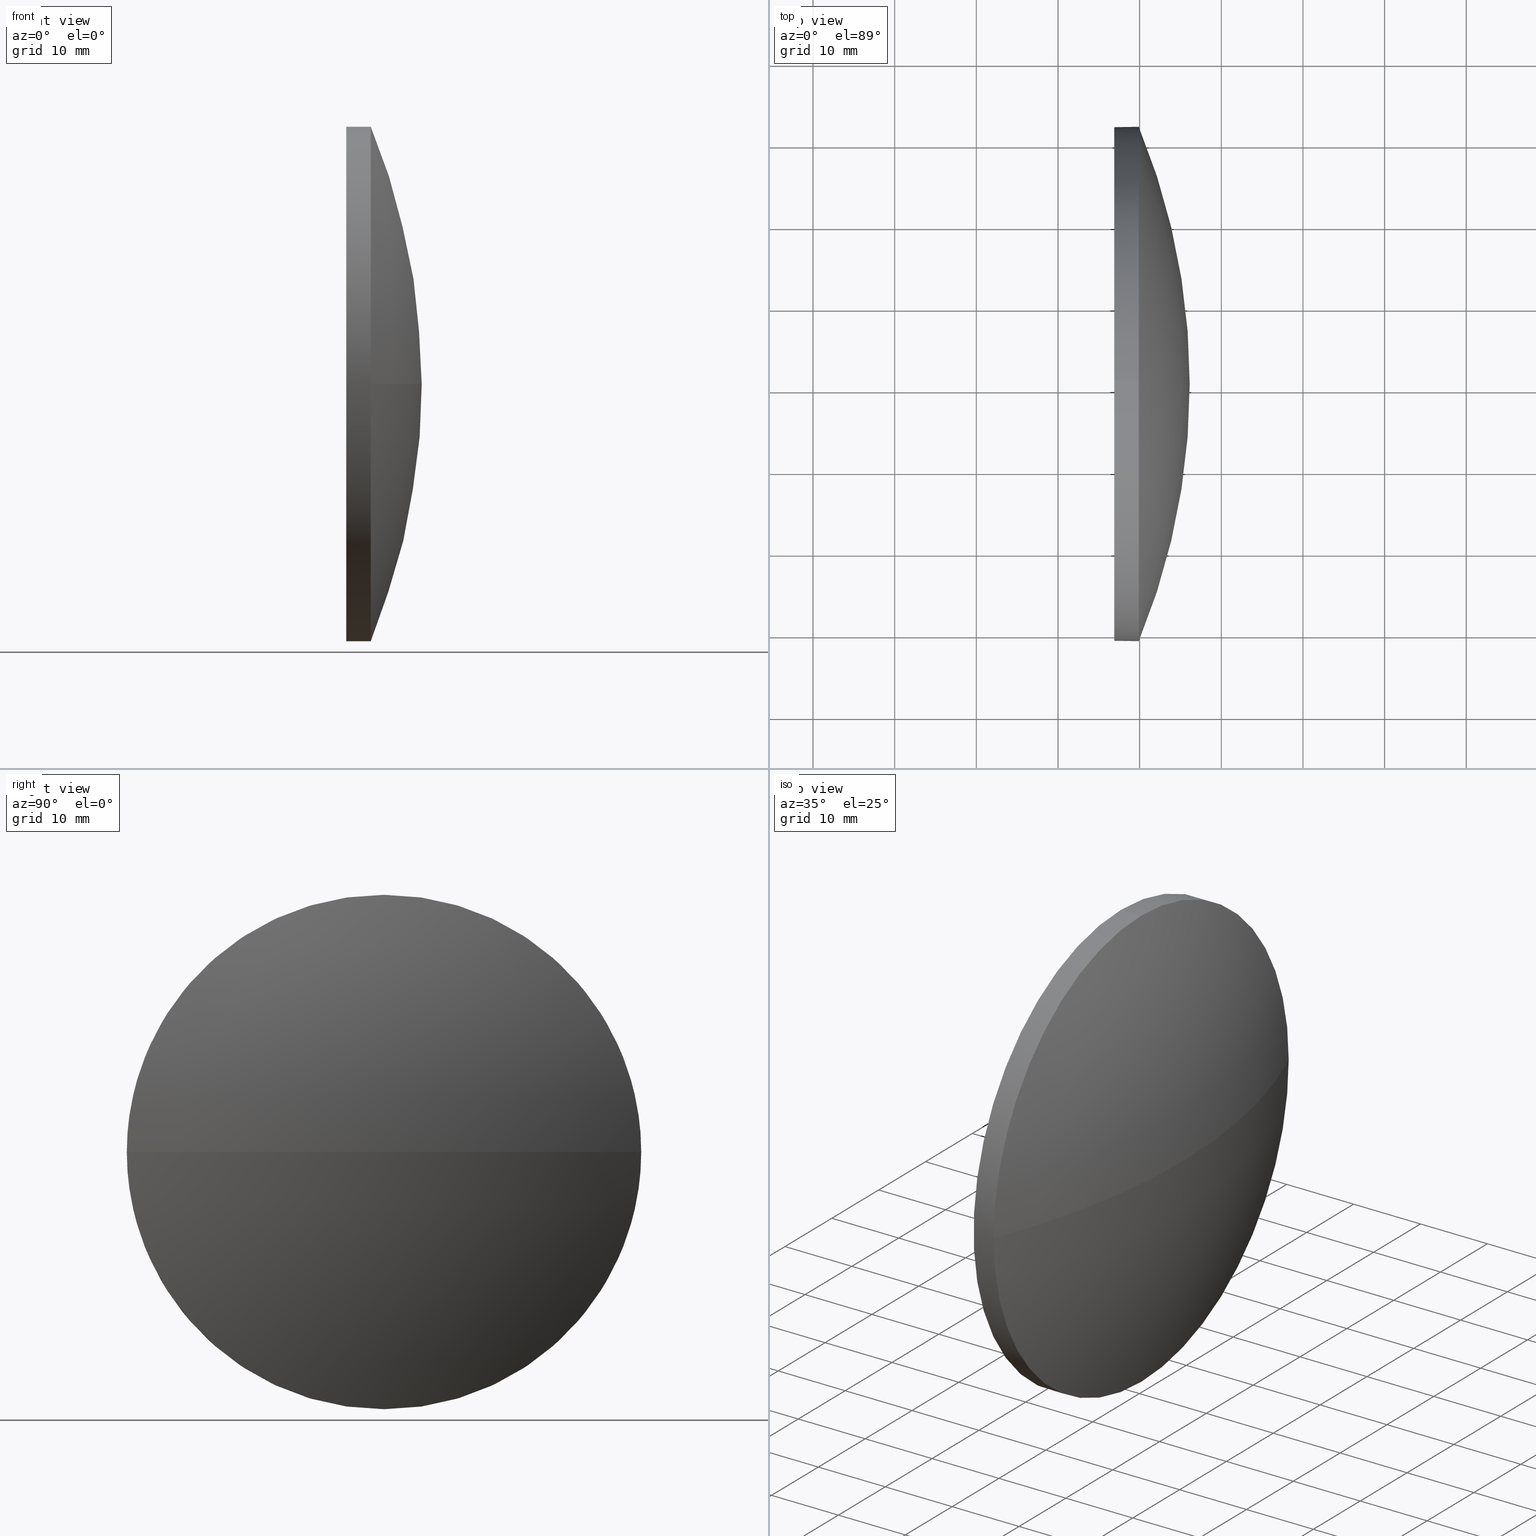
[diagram: canonical four-view strip — front | top / right | iso, engineering-drawing reading convention]
A machine part, canonical four-view strip (front | top / right | iso — engineering-drawing reading convention). The complete STEP part file that produces these views, byte-faithful:
ISO-10303-21;
HEADER;
FILE_DESCRIPTION (( 'STEP AP214' ),
    '1' );
FILE_NAME ('100246.STEP',
    '2019-05-28T08:59:00',
    ( '' ),
    ( '' ),
    'SwSTEP 2.0',
    'SolidWorks 2016',
    '' );
FILE_SCHEMA (( 'AUTOMOTIVE_DESIGN' ));
ENDSEC;

DATA;
#1 = PRODUCT ( '100246', '100246', '', ( #139 ) ) ;
#2 = DIRECTION ( 'NONE',  ( 0.0000000000000000000, 1.224646799147353200E-016, -1.000000000000000000 ) ) ;
#3 = MECHANICAL_DESIGN_GEOMETRIC_PRESENTATION_REPRESENTATION (  '', ( #155 ), #135 ) ;
#4 = ORIENTED_EDGE ( 'NONE', *, *, #32, .T. ) ;
#5 = CARTESIAN_POINT ( 'NONE',  ( 229.8933010013870400, 99.01858145695609900, -3.857637417314164300E-015 ) ) ;
#6 = EDGE_CURVE ( 'NONE', #92, #130, #160, .T. ) ;
#7 =( NAMED_UNIT ( * ) SI_UNIT ( $, .STERADIAN. ) SOLID_ANGLE_UNIT ( ) );
#8 = FACE_OUTER_BOUND ( 'NONE', #119, .T. ) ;
#9 = MECHANICAL_DESIGN_GEOMETRIC_PRESENTATION_REPRESENTATION (  '', ( #62 ), #13 ) ;
#10 =( GEOMETRIC_REPRESENTATION_CONTEXT ( 3 ) GLOBAL_UNCERTAINTY_ASSIGNED_CONTEXT ( ( #87 ) ) GLOBAL_UNIT_ASSIGNED_CONTEXT ( ( #166, #118, #37 ) ) REPRESENTATION_CONTEXT ( 'NONE', 'WORKASPACE' ) );
#11 = CARTESIAN_POINT ( 'NONE',  ( 229.8933010013870400, 130.5185814569561000, 0.0000000000000000000 ) ) ;
#12 = EDGE_CURVE ( 'NONE', #130, #92, #111, .T. ) ;
#13 =( GEOMETRIC_REPRESENTATION_CONTEXT ( 3 ) GLOBAL_UNCERTAINTY_ASSIGNED_CONTEXT ( ( #78 ) ) GLOBAL_UNIT_ASSIGNED_CONTEXT ( ( #181, #61, #7 ) ) REPRESENTATION_CONTEXT ( 'NONE', 'WORKASPACE' ) );
#14 = CARTESIAN_POINT ( 'NONE',  ( 226.8933010013870400, 130.5185814569561000, 0.0000000000000000000 ) ) ;
#15 = AXIS2_PLACEMENT_3D ( 'NONE', #123, #140, #143 ) ;
#16 = CARTESIAN_POINT ( 'NONE',  ( 153.5060894629256700, 130.5185814569561000, 0.0000000000000000000 ) ) ;
#17 = EDGE_LOOP ( 'NONE', ( #73, #177, #91, #186, #29 ) ) ;
#18 = LINE ( 'NONE', #47, #145 ) ;
#19 = CARTESIAN_POINT ( 'NONE',  ( 226.8933010013870400, 130.5185814569561000, -31.50000000000000000 ) ) ;
#20 = EDGE_CURVE ( 'NONE', #101, #92, #18, .T. ) ;
#21 = DIRECTION ( 'NONE',  ( 1.000000000000000000, 0.0000000000000000000, 0.0000000000000000000 ) ) ;
#22 = CARTESIAN_POINT ( 'NONE',  ( 229.8933010013870400, 130.5185814569561000, 0.0000000000000000000 ) ) ;
#23 = ADVANCED_FACE ( 'NONE', ( #173 ), #171, .T. ) ;
#24 = CARTESIAN_POINT ( 'NONE',  ( 153.5060894629256700, 130.5185814569561000, 0.0000000000000000000 ) ) ;
#25 = VERTEX_POINT ( 'NONE', #65 ) ;
#26 = EDGE_CURVE ( 'NONE', #161, #106, #60, .T. ) ;
#27 = ADVANCED_FACE ( 'NONE', ( #86 ), #44, .F. ) ;
#28 = COLOUR_RGB ( '',1.000000000000000000, 1.000000000000000000, 1.000000000000000000 ) ;
#29 = ORIENTED_EDGE ( 'NONE', *, *, #6, .F. ) ;
#30 = EDGE_CURVE ( 'NONE', #106, #130, #116, .T. ) ;
#31 = PRESENTATION_LAYER_ASSIGNMENT (  '', '', ( #155 ) ) ;
#32 = EDGE_CURVE ( 'NONE', #25, #63, #100, .T. ) ;
#33 = ORIENTED_EDGE ( 'NONE', *, *, #12, .T. ) ;
#34 = DIRECTION ( 'NONE',  ( -1.000000000000000000, -0.0000000000000000000, -0.0000000000000000000 ) ) ;
#35 = AXIS2_PLACEMENT_3D ( 'NONE', #174, #46, #64 ) ;
#36 = CARTESIAN_POINT ( 'NONE',  ( 226.8933010013870400, 130.5185814569561000, 0.0000000000000000000 ) ) ;
#37 =( NAMED_UNIT ( * ) SI_UNIT ( $, .STERADIAN. ) SOLID_ANGLE_UNIT ( ) );
#38 = CARTESIAN_POINT ( 'NONE',  ( 218.1236667371545400, 130.5185814569561000, 0.0000000000000000000 ) ) ;
#39 = DIRECTION ( 'NONE',  ( 0.0000000000000000000, 1.000000000000000000, 0.0000000000000000000 ) ) ;
#40 = ORIENTED_EDGE ( 'NONE', *, *, #20, .T. ) ;
#41 = AXIS2_PLACEMENT_3D ( 'NONE', #164, #2, #108 ) ;
#42 = AXIS2_PLACEMENT_3D ( 'NONE', #117, #49, #148 ) ;
#43 = AXIS2_PLACEMENT_3D ( 'NONE', #16, #51, #39 ) ;
#44 = PLANE ( 'NONE',  #128 ) ;
#45 = EDGE_CURVE ( 'NONE', #106, #63, #182, .T. ) ;
#46 = DIRECTION ( 'NONE',  ( -1.000000000000000000, -0.0000000000000000000, -0.0000000000000000000 ) ) ;
#47 = CARTESIAN_POINT ( 'NONE',  ( 218.1236667371545400, 130.5185814569561000, -31.50000000000000000 ) ) ;
#48 = CIRCLE ( 'NONE', #147, 31.50000000000000000 ) ;
#49 = DIRECTION ( 'NONE',  ( -1.000000000000000000, -0.0000000000000000000, -0.0000000000000000000 ) ) ;
#50 = AXIS2_PLACEMENT_3D ( 'NONE', #151, #175, #109 ) ;
#51 = DIRECTION ( 'NONE',  ( -0.0000000000000000000, 0.0000000000000000000, -1.000000000000000000 ) ) ;
#52 = VECTOR ( 'NONE', #168, 1000.000000000000000 ) ;
#53 = CARTESIAN_POINT ( 'NONE',  ( 229.8933010013870400, 130.5185814569561000, 31.50000000000000000 ) ) ;
#54 = DIRECTION ( 'NONE',  ( 0.0000000000000000000, 0.0000000000000000000, 1.000000000000000000 ) ) ;
#55 = CARTESIAN_POINT ( 'NONE',  ( 226.8933010013870400, 130.5185814569561000, 31.50000000000000000 ) ) ;
#56 = ORIENTED_EDGE ( 'NONE', *, *, #30, .F. ) ;
#57 = AXIS2_PLACEMENT_3D ( 'NONE', #11, #34, #131 ) ;
#58 = SURFACE_STYLE_USAGE ( .BOTH. , #81 ) ;
#59 = ORIENTED_EDGE ( 'NONE', *, *, #180, .F. ) ;
#60 = CIRCLE ( 'NONE', #57, 31.50000000000000000 ) ;
#61 =( NAMED_UNIT ( * ) PLANE_ANGLE_UNIT ( ) SI_UNIT ( $, .RADIAN. ) );
#62 = STYLED_ITEM ( 'NONE', ( #149 ), #146 ) ;
#63 = VERTEX_POINT ( 'NONE', #95 ) ;
#64 = DIRECTION ( 'NONE',  ( 0.0000000000000000000, 0.0000000000000000000, 1.000000000000000000 ) ) ;
#65 = CARTESIAN_POINT ( 'NONE',  ( 236.1333010013870800, 130.5185814569561000, 0.0000000000000000000 ) ) ;
#66 = DIRECTION ( 'NONE',  ( 1.000000000000000000, 0.0000000000000000000, 0.0000000000000000000 ) ) ;
#67 =( LENGTH_UNIT ( ) NAMED_UNIT ( * ) SI_UNIT ( .MILLI., .METRE. ) );
#68 = DIRECTION ( 'NONE',  ( 0.0000000000000000000, 1.000000000000000000, 0.0000000000000000000 ) ) ;
#69 =( NAMED_UNIT ( * ) SI_UNIT ( $, .STERADIAN. ) SOLID_ANGLE_UNIT ( ) );
#70 = ORIENTED_EDGE ( 'NONE', *, *, #32, .F. ) ;
#71 = ORIENTED_EDGE ( 'NONE', *, *, #45, .T. ) ;
#72 = FILL_AREA_STYLE ('',( #80 ) ) ;
#73 = ORIENTED_EDGE ( 'NONE', *, *, #20, .F. ) ;
#74 = PRODUCT_DEFINITION_SHAPE ( 'NONE', 'NONE',  #185 ) ;
#75 = AXIS2_PLACEMENT_3D ( 'NONE', #14, #115, #90 ) ;
#76 = SPHERICAL_SURFACE ( 'NONE', #184, 82.62721153846139500 ) ;
#77 = DIRECTION ( 'NONE',  ( 0.0000000000000000000, 0.0000000000000000000, -1.000000000000000000 ) ) ;
#78 = UNCERTAINTY_MEASURE_WITH_UNIT (LENGTH_MEASURE( 1.000000000000000100E-005 ), #181, 'distance_accuracy_value', 'NONE');
#79 = CARTESIAN_POINT ( 'NONE',  ( 229.8933010013870400, 130.5185814569561000, -31.50000000000000000 ) ) ;
#80 = FILL_AREA_STYLE_COLOUR ( '', #112 ) ;
#81 = SURFACE_SIDE_STYLE ('',( #107 ) ) ;
#82 = SURFACE_STYLE_FILL_AREA ( #94 ) ;
#83 = AXIS2_PLACEMENT_3D ( 'NONE', #24, #153, #21 ) ;
#84 = ADVANCED_FACE ( 'NONE', ( #150 ), #76, .T. ) ;
#85 = ORIENTED_EDGE ( 'NONE', *, *, #12, .F. ) ;
#86 = FACE_OUTER_BOUND ( 'NONE', #169, .T. ) ;
#87 = UNCERTAINTY_MEASURE_WITH_UNIT (LENGTH_MEASURE( 1.000000000000000100E-005 ), #166, 'distance_accuracy_value', 'NONE');
#88 = ORIENTED_EDGE ( 'NONE', *, *, #102, .F. ) ;
#89 = CIRCLE ( 'NONE', #41, 82.62721153846139500 ) ;
#90 = DIRECTION ( 'NONE',  ( 0.0000000000000000000, 0.0000000000000000000, 1.000000000000000000 ) ) ;
#91 = ORIENTED_EDGE ( 'NONE', *, *, #26, .T. ) ;
#92 = VERTEX_POINT ( 'NONE', #19 ) ;
#93 = DIRECTION ( 'NONE',  ( 0.0000000000000000000, 0.0000000000000000000, 1.000000000000000000 ) ) ;
#94 = FILL_AREA_STYLE ('',( #136 ) ) ;
#95 = CARTESIAN_POINT ( 'NONE',  ( 229.8933010013870400, 162.0185814569561300, 0.0000000000000000000 ) ) ;
#96 = PRESENTATION_STYLE_ASSIGNMENT (( #134 ) ) ;
#97 = APPLICATION_PROTOCOL_DEFINITION ( 'draft international standard', 'automotive_design', 1998, #127 ) ;
#98 = CIRCLE ( 'NONE', #50, 31.50000000000000000 ) ;
#99 = MANIFOLD_SOLID_BREP ( '��ת1', #129 ) ;
#100 = CIRCLE ( 'NONE', #83, 82.62721153846139500 ) ;
#101 = VERTEX_POINT ( 'NONE', #79 ) ;
#102 = EDGE_CURVE ( 'NONE', #25, #161, #89, .T. ) ;
#103 = FACE_OUTER_BOUND ( 'NONE', #126, .T. ) ;
#104 = SURFACE_SIDE_STYLE ('',( #82 ) ) ;
#105 = CARTESIAN_POINT ( 'NONE',  ( 229.8933010013870400, 130.5185814569561000, 0.0000000000000000000 ) ) ;
#106 = VERTEX_POINT ( 'NONE', #53 ) ;
#107 = SURFACE_STYLE_FILL_AREA ( #72 ) ;
#108 = DIRECTION ( 'NONE',  ( 0.0000000000000000000, 1.000000000000000000, 1.224646799147353200E-016 ) ) ;
#109 = DIRECTION ( 'NONE',  ( 0.0000000000000000000, 0.0000000000000000000, 1.000000000000000000 ) ) ;
#110 = PRODUCT_DEFINITION_FORMATION_WITH_SPECIFIED_SOURCE ( '�κ�', '', #1, .NOT_KNOWN. ) ;
#111 = CIRCLE ( 'NONE', #75, 31.50000000000000000 ) ;
#112 = COLOUR_RGB ( '',1.000000000000000000, 1.000000000000000000, 1.000000000000000000 ) ;
#113 = EDGE_LOOP ( 'NONE', ( #88, #4, #170, #125 ) ) ;
#114 = DIRECTION ( 'NONE',  ( -1.000000000000000000, -0.0000000000000000000, -0.0000000000000000000 ) ) ;
#115 = DIRECTION ( 'NONE',  ( -1.000000000000000000, -0.0000000000000000000, -0.0000000000000000000 ) ) ;
#116 = LINE ( 'NONE', #137, #52 ) ;
#117 = CARTESIAN_POINT ( 'NONE',  ( 218.1236667371545400, 130.5185814569561000, 0.0000000000000000000 ) ) ;
#118 =( NAMED_UNIT ( * ) PLANE_ANGLE_UNIT ( ) SI_UNIT ( $, .RADIAN. ) );
#119 = EDGE_LOOP ( 'NONE', ( #70, #124, #163, #59 ) ) ;
#120 = CYLINDRICAL_SURFACE ( 'NONE', #158, 31.50000000000000000 ) ;
#121 = PRESENTATION_LAYER_ASSIGNMENT (  '', '', ( #62 ) ) ;
#122 = DIRECTION ( 'NONE',  ( -1.000000000000000000, -0.0000000000000000000, -0.0000000000000000000 ) ) ;
#123 = CARTESIAN_POINT ( 'NONE',  ( 0.0000000000000000000, 0.0000000000000000000, 0.0000000000000000000 ) ) ;
#124 = ORIENTED_EDGE ( 'NONE', *, *, #102, .T. ) ;
#125 = ORIENTED_EDGE ( 'NONE', *, *, #26, .F. ) ;
#126 = EDGE_LOOP ( 'NONE', ( #133, #40, #85, #56, #71 ) ) ;
#127 = APPLICATION_CONTEXT ( 'automotive_design' ) ;
#128 = AXIS2_PLACEMENT_3D ( 'NONE', #36, #66, #77 ) ;
#129 = CLOSED_SHELL ( 'NONE', ( #138, #157, #84, #23, #27 ) ) ;
#130 = VERTEX_POINT ( 'NONE', #55 ) ;
#131 = DIRECTION ( 'NONE',  ( 0.0000000000000000000, 0.0000000000000000000, 1.000000000000000000 ) ) ;
#132 = PRODUCT_RELATED_PRODUCT_CATEGORY ( 'part', '', ( #1 ) ) ;
#133 = ORIENTED_EDGE ( 'NONE', *, *, #180, .T. ) ;
#134 = SURFACE_STYLE_USAGE ( .BOTH. , #104 ) ;
#135 =( GEOMETRIC_REPRESENTATION_CONTEXT ( 3 ) GLOBAL_UNCERTAINTY_ASSIGNED_CONTEXT ( ( #154 ) ) GLOBAL_UNIT_ASSIGNED_CONTEXT ( ( #67, #167, #69 ) ) REPRESENTATION_CONTEXT ( 'NONE', 'WORKASPACE' ) );
#136 = FILL_AREA_STYLE_COLOUR ( '', #28 ) ;
#137 = CARTESIAN_POINT ( 'NONE',  ( 218.1236667371545400, 130.5185814569561000, 31.50000000000000000 ) ) ;
#138 = ADVANCED_FACE ( 'NONE', ( #103 ), #120, .T. ) ;
#139 = PRODUCT_CONTEXT ( 'NONE', #127, 'mechanical' ) ;
#140 = DIRECTION ( 'NONE',  ( 0.0000000000000000000, 0.0000000000000000000, 1.000000000000000000 ) ) ;
#141 = SHAPE_DEFINITION_REPRESENTATION ( #74, #146 ) ;
#142 = SPHERICAL_SURFACE ( 'NONE', #43, 82.62721153846139500 ) ;
#143 = DIRECTION ( 'NONE',  ( 1.000000000000000000, 0.0000000000000000000, 0.0000000000000000000 ) ) ;
#144 = PRODUCT_DEFINITION_CONTEXT ( 'detailed design', #172, 'design' ) ;
#145 = VECTOR ( 'NONE', #114, 1000.000000000000000 ) ;
#146 = ADVANCED_BREP_SHAPE_REPRESENTATION ( '100246', ( #99, #15 ), #10 ) ;
#147 = AXIS2_PLACEMENT_3D ( 'NONE', #22, #122, #54 ) ;
#148 = DIRECTION ( 'NONE',  ( 0.0000000000000000000, 0.0000000000000000000, 1.000000000000000000 ) ) ;
#149 = PRESENTATION_STYLE_ASSIGNMENT (( #58 ) ) ;
#150 = FACE_OUTER_BOUND ( 'NONE', #113, .T. ) ;
#151 = CARTESIAN_POINT ( 'NONE',  ( 229.8933010013870400, 130.5185814569561000, 0.0000000000000000000 ) ) ;
#152 = DIRECTION ( 'NONE',  ( -1.000000000000000000, -0.0000000000000000000, -0.0000000000000000000 ) ) ;
#153 = DIRECTION ( 'NONE',  ( -0.0000000000000000000, 0.0000000000000000000, 1.000000000000000000 ) ) ;
#154 = UNCERTAINTY_MEASURE_WITH_UNIT (LENGTH_MEASURE( 1.000000000000000100E-005 ), #67, 'distance_accuracy_value', 'NONE');
#155 = STYLED_ITEM ( 'NONE', ( #96 ), #99 ) ;
#156 = DIRECTION ( 'NONE',  ( 0.0000000000000000000, 0.0000000000000000000, 1.000000000000000000 ) ) ;
#157 = ADVANCED_FACE ( 'NONE', ( #8 ), #142, .T. ) ;
#158 = AXIS2_PLACEMENT_3D ( 'NONE', #38, #152, #156 ) ;
#159 = ORIENTED_EDGE ( 'NONE', *, *, #6, .T. ) ;
#160 = CIRCLE ( 'NONE', #35, 31.50000000000000000 ) ;
#161 = VERTEX_POINT ( 'NONE', #5 ) ;
#162 = AXIS2_PLACEMENT_3D ( 'NONE', #105, #176, #93 ) ;
#163 = ORIENTED_EDGE ( 'NONE', *, *, #165, .F. ) ;
#164 = CARTESIAN_POINT ( 'NONE',  ( 153.5060894629256700, 130.5185814569561000, 0.0000000000000000000 ) ) ;
#165 = EDGE_CURVE ( 'NONE', #101, #161, #48, .T. ) ;
#166 =( LENGTH_UNIT ( ) NAMED_UNIT ( * ) SI_UNIT ( .MILLI., .METRE. ) );
#167 =( NAMED_UNIT ( * ) PLANE_ANGLE_UNIT ( ) SI_UNIT ( $, .RADIAN. ) );
#168 = DIRECTION ( 'NONE',  ( -1.000000000000000000, -0.0000000000000000000, -0.0000000000000000000 ) ) ;
#169 = EDGE_LOOP ( 'NONE', ( #33, #159 ) ) ;
#170 = ORIENTED_EDGE ( 'NONE', *, *, #45, .F. ) ;
#171 = CYLINDRICAL_SURFACE ( 'NONE', #42, 31.50000000000000000 ) ;
#172 = APPLICATION_CONTEXT ( 'automotive_design' ) ;
#173 = FACE_OUTER_BOUND ( 'NONE', #17, .T. ) ;
#174 = CARTESIAN_POINT ( 'NONE',  ( 226.8933010013870400, 130.5185814569561000, 0.0000000000000000000 ) ) ;
#175 = DIRECTION ( 'NONE',  ( -1.000000000000000000, -0.0000000000000000000, -0.0000000000000000000 ) ) ;
#176 = DIRECTION ( 'NONE',  ( -1.000000000000000000, -0.0000000000000000000, -0.0000000000000000000 ) ) ;
#177 = ORIENTED_EDGE ( 'NONE', *, *, #165, .T. ) ;
#178 = CARTESIAN_POINT ( 'NONE',  ( 153.5060894629256700, 130.5185814569561000, 0.0000000000000000000 ) ) ;
#179 = DIRECTION ( 'NONE',  ( -0.0000000000000000000, 0.0000000000000000000, -1.000000000000000000 ) ) ;
#180 = EDGE_CURVE ( 'NONE', #63, #101, #98, .T. ) ;
#181 =( LENGTH_UNIT ( ) NAMED_UNIT ( * ) SI_UNIT ( .MILLI., .METRE. ) );
#182 = CIRCLE ( 'NONE', #162, 31.50000000000000000 ) ;
#183 = APPLICATION_PROTOCOL_DEFINITION ( 'draft international standard', 'automotive_design', 1998, #172 ) ;
#184 = AXIS2_PLACEMENT_3D ( 'NONE', #178, #179, #68 ) ;
#185 = PRODUCT_DEFINITION ( 'δ֪', '', #110, #144 ) ;
#186 = ORIENTED_EDGE ( 'NONE', *, *, #30, .T. ) ;
ENDSEC;
END-ISO-10303-21;
